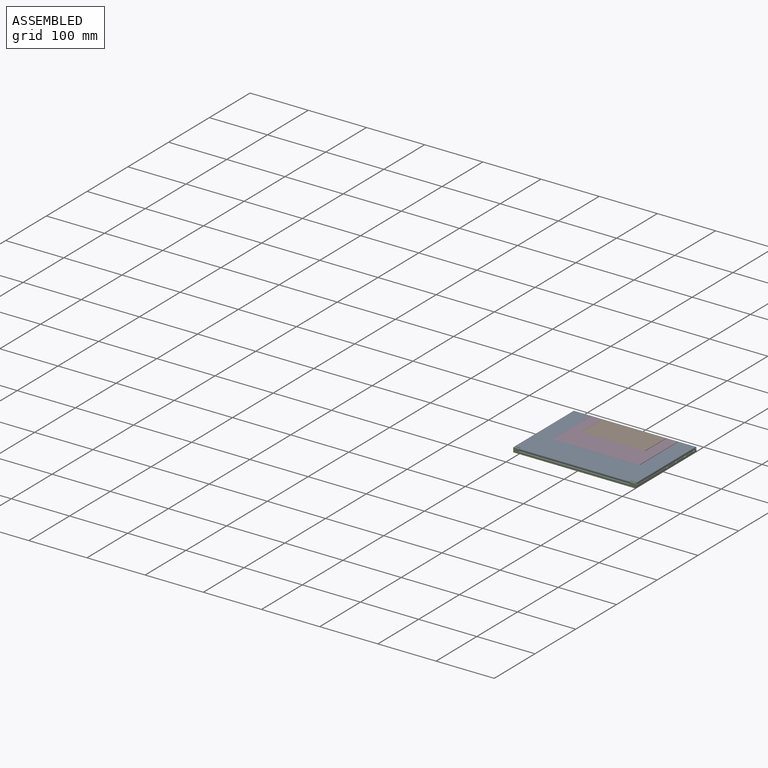
[diagram: assembled view]
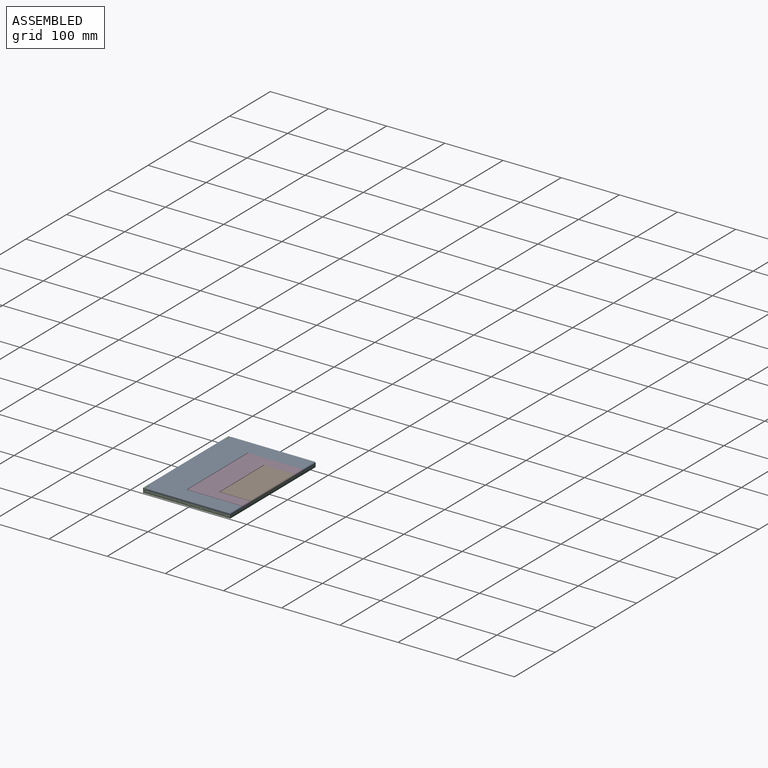
[diagram: assembled view, second angle]
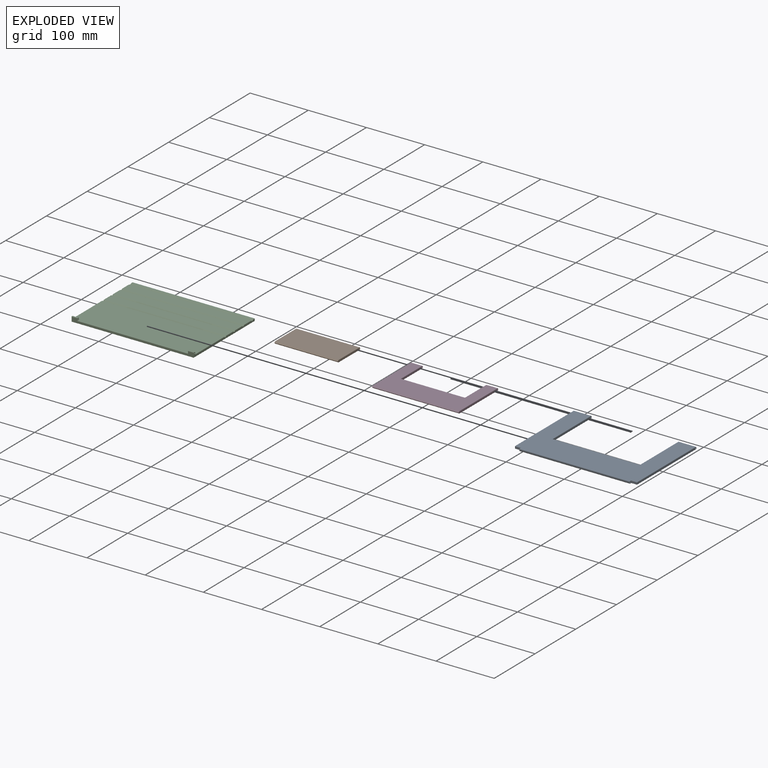
[diagram: exploded view]
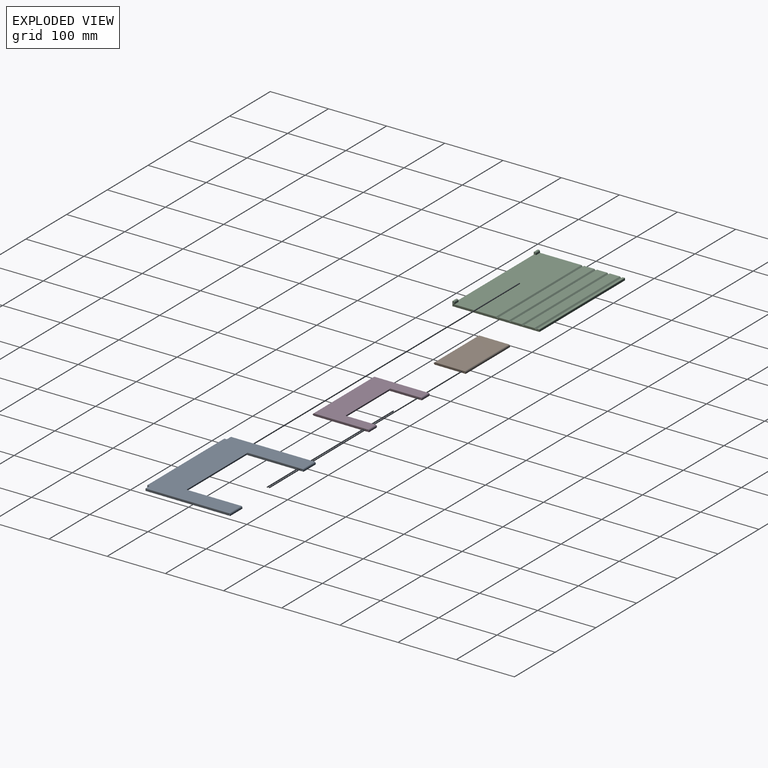
[diagram: exploded view, second angle]
ASSEMBLY  parts=4 mates=3
PART A: 68 faces, bbox 210x150.3x4.3 mm
  f0: plane 29.3x1.55mm, normal (0,1,0), area 45.4mm2, adj f20,f23,f28,f34
  f1: plane 209.3x147.55mm, normal (0,0,-1), area 16123.7mm2, adj f19,f26,f28,f29,f32,f35,f39,f43
  f2: plane 9.9x3.3mm, normal (0,-1,0), area 32.7mm2, adj f10,f49,f57,f58
  f3: plane 29.3x1.55mm, normal (0,1,0), area 45.4mm2, adj f18,f33,f39,f40
  f4: plane 209.3x147.55mm, normal (0,0,1), area 16599.4mm2, adj f18,f20,f22,f24,f27,f41,f50,f51
  f5: plane 9.9x3.3mm, normal (0,-1,0), area 32.7mm2, adj f9,f42,f43,f51
  f6: plane 145.1x3.3mm, normal (1,0,0), area 472.4mm2, adj f34,f35,f37,f41,f42,f66
  f7: plane 145.1x3.3mm, normal (-1,0,0), area 472.4mm2, adj f40,f45,f48,f49,f50,f67
  f8: plane 188.8x1.55mm, normal (0,-1,0), area 292.6mm2, adj f19,f56,f62,f65
  f9: plane 3.85x3.3mm, normal (1,0,0), area 8.9mm2, adj f5,f11,f47,f52,f55,f56
  f10: plane 3.85x3.3mm, normal (-1,0,0), area 8.9mm2, adj f2,f11,f60,f61,f63,f65
  f11: cylinder r=1mm len=189.5mm, axis (1,0,0), area 1190.7mm2, adj f9,f10
  f12: plane 150x1.53mm, normal (0,0.67,-0.74), area 310.2mm2, adj f13,f14,f15,f24
  f13: plane 150x1.65mm, normal (0,1,0), area 247.5mm2, adj f12,f14,f15,f29
  f14: plane 97.25x3.3mm, normal (1,0,0), area 315.6mm2, adj f12,f13,f17,f24,f27,f30,f32,f33
  f15: plane 97.25x3.3mm, normal (-1,0,0), area 315.6mm2, adj f12,f13,f16,f21,f22,f23,f24,f26
  f16: cylinder r=1mm len=29.65mm, axis (1,0,0), area 186.3mm2, adj f15,f66
  f17: cylinder r=1mm len=29.65mm, axis (1,0,0), area 186.3mm2, adj f14,f67
  f18: cylinder r=2.1mm len=29.3mm, axis (-1,0,0), area 96.7mm2, adj f3,f4,f30,f45
  f19: cylinder r=2.1mm len=188.8mm, axis (1,0,0), area 622.8mm2, adj f1,f8,f52,f63
  f20: cylinder r=2.1mm len=29.3mm, axis (-1,0,0), area 96.7mm2, adj f0,f4,f21,f37
  f21: torus R=1.75mm, axis (1,0,0), area 1.7mm2, adj f15,f20,f22,f23
  f22: cylinder r=0.35mm len=94.21mm, axis (0,-1,0), area 51.7mm2, adj f4,f15,f21,f24
  f23: cylinder r=0.35mm len=1.55mm, axis (0,0,-1), area 0.9mm2, adj f0,f15,f21,f25
  f24: cylinder r=0.35mm len=150.7mm, axis (1,0,0), area 126.3mm2, adj f4,f12,f14,f15,f22,f27
  f25: sphere r=0.35mm, area 0.2mm2, adj f23,f26,f28
  f26: cylinder r=0.35mm len=97.6mm, axis (0,-1,0), area 53.5mm2, adj f1,f15,f25,f29
  f27: cylinder r=0.35mm len=94.21mm, axis (0,1,0), area 51.7mm2, adj f4,f14,f24,f30
  f28: cylinder r=0.35mm len=29.3mm, axis (1,0,0), area 16.1mm2, adj f0,f1,f25,f31
  f29: cylinder r=0.35mm len=150.7mm, axis (-1,0,0), area 82.6mm2, adj f1,f13,f26,f32
  f30: torus R=1.75mm, axis (1,0,0), area 1.7mm2, adj f14,f18,f27,f33
  f31: sphere r=0.35mm, area 0.2mm2, adj f28,f34,f35
  f32: cylinder r=0.35mm len=97.6mm, axis (0,1,0), area 53.5mm2, adj f1,f14,f29,f36
  f33: cylinder r=0.35mm len=1.55mm, axis (0,0,1), area 0.9mm2, adj f3,f14,f30,f36
  f34: cylinder r=0.35mm len=1.55mm, axis (0,0,-1), area 0.9mm2, adj f0,f6,f31,f37
  f35: cylinder r=0.35mm len=145.1mm, axis (0,-1,0), area 79.8mm2, adj f1,f6,f31,f38
  f36: sphere r=0.35mm, area 0.2mm2, adj f32,f33,f39
  f37: torus R=1.75mm, axis (1,0,0), area 1.7mm2, adj f6,f20,f34,f41
  f38: sphere r=0.35mm, area 0.2mm2, adj f35,f42,f43
  f39: cylinder r=0.35mm len=29.3mm, axis (1,0,0), area 16.1mm2, adj f1,f3,f36,f44
  f40: cylinder r=0.35mm len=1.55mm, axis (0,0,1), area 0.9mm2, adj f3,f7,f44,f45
  f41: cylinder r=0.35mm len=143.35mm, axis (0,1,0), area 78.8mm2, adj f4,f6,f37,f46
  f42: cylinder r=0.35mm len=3.3mm, axis (0,0,1), area 1.8mm2, adj f5,f6,f38,f46
  f43: cylinder r=0.35mm len=10.25mm, axis (-1,0,0), area 5.5mm2, adj f1,f5,f38,f47
  f44: sphere r=0.35mm, area 0.2mm2, adj f39,f40,f48
  f45: torus R=1.75mm, axis (1,0,0), area 1.7mm2, adj f7,f18,f40,f50
  f46: sphere r=0.35mm, area 0.2mm2, adj f41,f42,f51
  f47: cylinder r=0.35mm len=2.45mm, axis (0,1,0), area 1.2mm2, adj f1,f9,f43,f52
  f48: cylinder r=0.35mm len=145.1mm, axis (0,1,0), area 79.8mm2, adj f1,f7,f44,f53
  f49: cylinder r=0.35mm len=3.3mm, axis (0,0,-1), area 1.8mm2, adj f2,f7,f53,f54
  f50: cylinder r=0.35mm len=143.35mm, axis (0,-1,0), area 78.8mm2, adj f4,f7,f45,f54
  f51: cylinder r=0.35mm len=10.25mm, axis (1,0,0), area 5.5mm2, adj f4,f5,f46,f55
  f52: torus R=1.75mm, axis (1,0,0), area 1.7mm2, adj f9,f19,f47,f56
  f53: sphere r=0.35mm, area 0.2mm2, adj f48,f49,f57
  f54: sphere r=0.35mm, area 0.2mm2, adj f49,f50,f58
  f55: cylinder r=0.35mm len=4.2mm, axis (0,-1,0), area 2.2mm2, adj f4,f9,f51,f59
  f56: cylinder r=0.35mm len=1.55mm, axis (0,0,1), area 0.9mm2, adj f8,f9,f52,f59
  f57: cylinder r=0.35mm len=10.25mm, axis (-1,0,0), area 5.5mm2, adj f1,f2,f53,f60
  f58: cylinder r=0.35mm len=10.25mm, axis (1,0,0), area 5.5mm2, adj f2,f4,f54,f61
  f59: sphere r=0.35mm, area 0.2mm2, adj f55,f56,f62
  f60: cylinder r=0.35mm len=2.45mm, axis (0,-1,0), area 1.2mm2, adj f1,f10,f57,f63
  f61: cylinder r=0.35mm len=4.2mm, axis (0,1,0), area 2.2mm2, adj f4,f10,f58,f64
  f62: cylinder r=0.35mm len=188.8mm, axis (-1,0,0), area 103.8mm2, adj f4,f8,f59,f64
  f63: torus R=1.75mm, axis (1,0,0), area 1.7mm2, adj f10,f19,f60,f65
  f64: sphere r=0.35mm, area 0.2mm2, adj f61,f62,f65
  f65: cylinder r=0.35mm len=1.55mm, axis (0,0,-1), area 0.9mm2, adj f8,f10,f63,f64
  f66: torus R=1.35mm, axis (1,0,0), area 3.9mm2, adj f6,f16
  f67: torus R=1.35mm, axis (1,0,0), area 3.9mm2, adj f7,f17
PART B: 22 faces, bbox 109x55.4x4.2 mm
  f0: plane 108.3x1.55mm, normal (0,1,0), area 167.9mm2, adj f8,f10,f16,f20
  f1: plane 108.3x50.76mm, normal (0,0,1), area 5497.8mm2, adj f8,f14,f17,f19
  f2: plane 109x2.1mm, normal (0,-0.67,0.74), area 309.3mm2, adj f3,f5,f6,f14,f17,f19
  f3: plane 109x2.1mm, normal (0,-0.67,-0.74), area 309.3mm2, adj f2,f5,f6,f9,f12,f15
  f4: plane 108.3x52.51mm, normal (0,0,-1), area 5687.3mm2, adj f9,f12,f15,f16
  f5: plane 54.85x3.3mm, normal (1,0,0), area 174.2mm2, adj f2,f3,f7,f9,f10,f11,f14
  f6: plane 54.85x3.3mm, normal (-1,0,0), area 174.2mm2, adj f2,f3,f7,f15,f19,f20,f21
  f7: cylinder r=1mm len=109mm, axis (1,0,0), area 684.9mm2, adj f5,f6
  f8: cylinder r=2.1mm len=108.3mm, axis (-1,0,0), area 357.2mm2, adj f0,f1,f11,f21
  f9: cylinder r=0.35mm len=53.04mm, axis (0,-1,0), area 29mm2, adj f3,f4,f5,f12,f13
  f10: cylinder r=0.35mm len=1.55mm, axis (0,0,-1), area 0.9mm2, adj f0,f5,f11,f13
  f11: torus R=1.75mm, axis (1,0,0), area 1.7mm2, adj f5,f8,f10,f14
  f12: cylinder r=0.35mm len=108.77mm, axis (-1,0,0), area 28mm2, adj f3,f4,f9,f15
  f13: sphere r=0.35mm, area 0.2mm2, adj f9,f10,f16
  f14: cylinder r=0.35mm len=51.29mm, axis (0,1,0), area 28mm2, adj f1,f2,f5,f11,f17
  f15: cylinder r=0.35mm len=53.04mm, axis (0,1,0), area 29mm2, adj f3,f4,f6,f12,f18
  f16: cylinder r=0.35mm len=108.3mm, axis (-1,0,0), area 59.5mm2, adj f0,f4,f13,f18
  f17: cylinder r=0.35mm len=108.77mm, axis (-1,0,0), area 28mm2, adj f1,f2,f14,f19
  f18: sphere r=0.35mm, area 0.2mm2, adj f15,f16,f20
  f19: cylinder r=0.35mm len=51.29mm, axis (0,-1,0), area 28mm2, adj f1,f2,f6,f17,f21
  f20: cylinder r=0.35mm len=1.55mm, axis (0,0,1), area 0.9mm2, adj f0,f6,f18,f21
  f21: torus R=1.75mm, axis (1,0,0), area 1.7mm2, adj f6,f8,f19,f20
PART C: 123 faces, bbox 210x150x8.4 mm
  f0: plane 209.3x7.5mm, normal (0,-1,0), area 769mm2, adj f78,f79,f86,f91,f92,f101,f107,f108
  f1: plane 149.3x7.5mm, normal (-1,0,0), area 482.3mm2, adj f31,f36,f41,f46,f51,f54,f55,f62
  f2: plane 209.3x17.25mm, normal (0,0,1), area 3611.4mm2, adj f35,f39,f45,f46
  f3: plane 209.3x3.78mm, normal (0,0,1), area 790.6mm2, adj f61,f71,f81,f82
  f4: plane 209.3x17.25mm, normal (0,0,1), area 3611.4mm2, adj f56,f59,f73,f74
  f5: plane 209.3x74.78mm, normal (0,0,1), area 15571.1mm2, adj f67,f68,f77,f85,f91,f97,f98,f105
  f6: plane 209.3x17.25mm, normal (0,0,1), area 3611.4mm2, adj f32,f33,f41,f42
  f7: plane 149.65x7.5mm, normal (1,0,0), area 483.4mm2, adj f11,f28,f30,f33,f39,f43,f48,f49
  f8: plane 9.3x1.75mm, normal (0,1,0), area 16.3mm2, adj f26,f99,f111,f117
  f9: plane 9.3x1.55mm, normal (0,0,1), area 14.4mm2, adj f26,f106,f115,f120
  f10: cylinder r=1mm len=9.65mm, axis (-1,0,0), area 60.6mm2, adj f17,f121
  f11: plane 209.65x3.3mm, normal (0,1,0), area 691.8mm2, adj f7,f81,f94,f95
  f12: plane 9.3x1.75mm, normal (0,1,0), area 16.3mm2, adj f27,f58,f66,f67
  f13: plane 9.3x1.55mm, normal (0,0,1), area 14.4mm2, adj f27,f65,f79,f80
  f14: plane 209.3x149.3mm, normal (0,0,-1), area 31248.5mm2, adj f93,f94,f108,f109
  f15: cylinder r=1mm len=9.65mm, axis (-1,0,0), area 60.6mm2, adj f16,f122
  f16: plane 3.5x3.3mm, normal (-1,0,0), area 7.8mm2, adj f15,f57,f58,f65,f77,f78
  f17: plane 3.5x3.3mm, normal (1,0,0), area 7.8mm2, adj f10,f98,f99,f100,f106,f107
  f18: plane 209.3x2.15mm, normal (0,0.62,0.78), area 577.4mm2, adj f19,f84,f96,f97
  f19: plane 209.3x2.15mm, normal (0,-0.62,0.78), area 577.4mm2, adj f18,f74,f75,f89
  f20: plane 209.3x2.15mm, normal (0,0.62,0.78), area 577.4mm2, adj f21,f48,f55,f56
  f21: plane 209.3x2.15mm, normal (0,-0.62,0.78), area 577.4mm2, adj f20,f42,f43,f51
  f22: plane 209.3x2.15mm, normal (0,0.62,0.78), area 577.4mm2, adj f23,f28,f31,f32
  f23: plane 209.3x2.15mm, normal (0,-0.62,0.78), area 577.4mm2, adj f22,f30,f35,f36
  f24: plane 209.3x2.15mm, normal (0,0.62,0.78), area 577.4mm2, adj f25,f45,f49,f54
  f25: plane 209.3x2.15mm, normal (0,-0.62,0.78), area 577.4mm2, adj f24,f53,f61,f62
  f26: cylinder r=2.1mm len=9.3mm, axis (-1,0,0), area 30.7mm2, adj f8,f9,f100,f119
  f27: cylinder r=2.1mm len=9.3mm, axis (-1,0,0), area 30.7mm2, adj f12,f13,f57,f70
  f28: cylinder r=0.35mm len=2.59mm, axis (0,-0.78,0.62), area 1.6mm2, adj f7,f22,f29,f30
  f29: sphere r=0.35mm, area 0.1mm2, adj f28,f32,f33
  f30: cylinder r=0.35mm len=2.59mm, axis (0,-0.78,-0.62), area 1.6mm2, adj f7,f23,f28,f34
  f31: cylinder r=0.35mm len=2.59mm, axis (0,0.78,-0.62), area 1.6mm2, adj f1,f22,f36,f37
  f32: cylinder r=0.35mm len=209.3mm, axis (-1,0,0), area 49.4mm2, adj f6,f22,f29,f37
  f33: cylinder r=0.35mm len=17.25mm, axis (0,1,0), area 9.5mm2, adj f6,f7,f29,f38
  f34: sphere r=0.35mm, area 0.1mm2, adj f30,f35,f39
  f35: cylinder r=0.35mm len=209.3mm, axis (1,0,0), area 49.4mm2, adj f2,f23,f34,f40
  f36: cylinder r=0.35mm len=2.59mm, axis (0,0.78,0.62), area 1.6mm2, adj f1,f23,f31,f40
  f37: sphere r=0.35mm, area 0.1mm2, adj f31,f32,f41
  f38: sphere r=0.35mm, area 0.1mm2, adj f33,f42,f43
  f39: cylinder r=0.35mm len=17.25mm, axis (0,1,0), area 9.5mm2, adj f2,f7,f34,f44
  f40: sphere r=0.35mm, area 0.1mm2, adj f35,f36,f46
  f41: cylinder r=0.35mm len=17.25mm, axis (0,-1,0), area 9.5mm2, adj f1,f6,f37,f47
  f42: cylinder r=0.35mm len=209.3mm, axis (1,0,0), area 49.4mm2, adj f6,f21,f38,f47
  f43: cylinder r=0.35mm len=2.59mm, axis (0,-0.78,-0.62), area 1.6mm2, adj f7,f21,f38,f48
  f44: sphere r=0.35mm, area 0.1mm2, adj f39,f45,f49
  f45: cylinder r=0.35mm len=209.3mm, axis (-1,0,0), area 49.4mm2, adj f2,f24,f44,f50
  f46: cylinder r=0.35mm len=17.25mm, axis (0,-1,0), area 9.5mm2, adj f1,f2,f40,f50
  f47: sphere r=0.35mm, area 0.1mm2, adj f41,f42,f51
  f48: cylinder r=0.35mm len=2.59mm, axis (0,-0.78,0.62), area 1.6mm2, adj f7,f20,f43,f52
  f49: cylinder r=0.35mm len=2.59mm, axis (0,-0.78,0.62), area 1.6mm2, adj f7,f24,f44,f53
  f50: sphere r=0.35mm, area 0.1mm2, adj f45,f46,f54
  f51: cylinder r=0.35mm len=2.59mm, axis (0,0.78,0.62), area 1.6mm2, adj f1,f21,f47,f55
  f52: sphere r=0.35mm, area 0.1mm2, adj f48,f56,f59
  f53: cylinder r=0.35mm len=2.59mm, axis (0,-0.78,-0.62), area 1.6mm2, adj f7,f25,f49,f60
  f54: cylinder r=0.35mm len=2.59mm, axis (0,0.78,-0.62), area 1.6mm2, adj f1,f24,f50,f62
  f55: cylinder r=0.35mm len=2.59mm, axis (0,0.78,-0.62), area 1.6mm2, adj f1,f20,f51,f63
  f56: cylinder r=0.35mm len=209.3mm, axis (-1,0,0), area 49.4mm2, adj f4,f20,f52,f63
  f57: torus R=1.75mm, axis (1,0,0), area 1.7mm2, adj f16,f27,f58,f65
  f58: cylinder r=0.35mm len=1.75mm, axis (0,0,1), area 1mm2, adj f12,f16,f57,f68
  f59: cylinder r=0.35mm len=17.25mm, axis (0,1,0), area 9.5mm2, adj f4,f7,f52,f64
  f60: sphere r=0.35mm, area 0.1mm2, adj f53,f61,f71
  f61: cylinder r=0.35mm len=209.3mm, axis (1,0,0), area 49.4mm2, adj f3,f25,f60,f72
  f62: cylinder r=0.35mm len=2.59mm, axis (0,0.78,0.62), area 1.6mm2, adj f1,f25,f54,f72
  f63: sphere r=0.35mm, area 0.1mm2, adj f55,f56,f73
  f64: sphere r=0.35mm, area 0.1mm2, adj f59,f74,f75
  f65: cylinder r=0.35mm len=1.55mm, axis (0,-1,0), area 0.9mm2, adj f13,f16,f57,f69
  f66: cylinder r=0.35mm len=1.75mm, axis (0,0,-1), area 1mm2, adj f7,f12,f70,f76
  f67: cylinder r=0.35mm len=9.3mm, axis (1,0,0), area 5.1mm2, adj f5,f12,f68,f76
  f68: torus R=0.7mm, axis (0,0,1), area 0.4mm2, adj f5,f58,f67,f77
  f69: sphere r=0.35mm, area 0.2mm2, adj f65,f78,f79
  f70: torus R=1.75mm, axis (1,0,0), area 1.7mm2, adj f7,f27,f66,f80
  f71: cylinder r=0.35mm len=4.13mm, axis (0,1,0), area 2.2mm2, adj f3,f7,f60,f81
  f72: sphere r=0.35mm, area 0.1mm2, adj f61,f62,f82
  f73: cylinder r=0.35mm len=17.25mm, axis (0,-1,0), area 9.5mm2, adj f1,f4,f63,f83
  f74: cylinder r=0.35mm len=209.3mm, axis (1,0,0), area 49.4mm2, adj f4,f19,f64,f83
  f75: cylinder r=0.35mm len=2.59mm, axis (0,-0.78,-0.62), area 1.6mm2, adj f7,f19,f64,f84
  f76: torus R=0.7mm, axis (1,0,0), area 0.4mm2, adj f7,f66,f67,f85
  f77: cylinder r=0.35mm len=3.3mm, axis (0,1,0), area 1.8mm2, adj f5,f16,f68,f86
  f78: cylinder r=0.35mm len=3.5mm, axis (0,0,1), area 1.9mm2, adj f0,f16,f69,f86
  f79: cylinder r=0.35mm len=9.3mm, axis (-1,0,0), area 5.1mm2, adj f0,f13,f69,f87
  f80: cylinder r=0.35mm len=1.55mm, axis (0,1,0), area 0.9mm2, adj f7,f13,f70,f87
  f81: cylinder r=0.35mm len=209.65mm, axis (-1,0,0), area 115.2mm2, adj f3,f11,f71,f88
  f82: cylinder r=0.35mm len=3.78mm, axis (0,-1,0), area 2.1mm2, adj f1,f3,f72,f88
  f83: sphere r=0.35mm, area 0.1mm2, adj f73,f74,f89
  f84: cylinder r=0.35mm len=2.59mm, axis (0,-0.78,0.62), area 1.6mm2, adj f7,f18,f75,f90
  f85: cylinder r=0.35mm len=70.78mm, axis (0,1,0), area 38.9mm2, adj f5,f7,f76,f90
  f86: torus R=0.7mm, axis (0,-1,0), area 0.4mm2, adj f0,f77,f78,f91
  f87: sphere r=0.35mm, area 0.2mm2, adj f79,f80,f92
  f88: sphere r=0.35mm, area 0.2mm2, adj f81,f82,f95
  f89: cylinder r=0.35mm len=2.59mm, axis (0,0.78,0.62), area 1.6mm2, adj f1,f19,f83,f96
  f90: sphere r=0.35mm, area 0.1mm2, adj f84,f85,f97
  f91: cylinder r=0.35mm len=189.3mm, axis (-1,0,0), area 104.1mm2, adj f0,f5,f86,f101
  f92: cylinder r=0.35mm len=7.5mm, axis (0,0,1), area 4.1mm2, adj f0,f7,f87,f102
  f93: cylinder r=0.35mm len=149.65mm, axis (0,-1,0), area 82.2mm2, adj f7,f14,f94,f102
  f94: cylinder r=0.35mm len=209.65mm, axis (-1,0,0), area 115.2mm2, adj f11,f14,f93,f103
  f95: cylinder r=0.35mm len=3.3mm, axis (0,0,1), area 1.8mm2, adj f1,f11,f88,f103
  f96: cylinder r=0.35mm len=2.59mm, axis (0,0.78,-0.62), area 1.6mm2, adj f1,f18,f89,f104
  f97: cylinder r=0.35mm len=209.3mm, axis (-1,0,0), area 49.4mm2, adj f5,f18,f90,f104
  f98: cylinder r=0.35mm len=3.3mm, axis (0,-1,0), area 1.8mm2, adj f5,f17,f101,f105
  f99: cylinder r=0.35mm len=1.75mm, axis (0,0,-1), area 1mm2, adj f8,f17,f100,f105
  f100: torus R=1.75mm, axis (1,0,0), area 1.7mm2, adj f17,f26,f99,f106
  f101: torus R=0.7mm, axis (0,-1,0), area 0.4mm2, adj f0,f91,f98,f107
  f102: sphere r=0.35mm, area 0.2mm2, adj f92,f93,f108
  f103: sphere r=0.35mm, area 0.2mm2, adj f94,f95,f109
  f104: sphere r=0.35mm, area 0.1mm2, adj f96,f97,f110
  f105: torus R=0.7mm, axis (0,0,1), area 0.4mm2, adj f5,f98,f99,f111
  f106: cylinder r=0.35mm len=1.55mm, axis (0,1,0), area 0.9mm2, adj f9,f17,f100,f112
  f107: cylinder r=0.35mm len=3.5mm, axis (0,0,-1), area 1.9mm2, adj f0,f17,f101,f112
  f108: cylinder r=0.35mm len=209.3mm, axis (-1,0,0), area 115.1mm2, adj f0,f14,f102,f113
  f109: cylinder r=0.35mm len=149.3mm, axis (0,1,0), area 82.1mm2, adj f1,f14,f103,f113
  f110: cylinder r=0.35mm len=70.78mm, axis (0,-1,0), area 38.9mm2, adj f1,f5,f104,f114
  f111: cylinder r=0.35mm len=9.3mm, axis (1,0,0), area 5.1mm2, adj f5,f8,f105,f114
  f112: sphere r=0.35mm, area 0.2mm2, adj f106,f107,f115
  f113: sphere r=0.35mm, area 0.2mm2, adj f108,f109,f116
  f114: torus R=0.7mm, axis (1,0,0), area 0.4mm2, adj f1,f110,f111,f117
  f115: cylinder r=0.35mm len=9.3mm, axis (-1,0,0), area 5.1mm2, adj f0,f9,f112,f118
  f116: cylinder r=0.35mm len=7.5mm, axis (0,0,-1), area 4.1mm2, adj f0,f1,f113,f118
  f117: cylinder r=0.35mm len=1.75mm, axis (0,0,1), area 1mm2, adj f1,f8,f114,f119
  f118: sphere r=0.35mm, area 0.2mm2, adj f115,f116,f120
  f119: torus R=1.75mm, axis (1,0,0), area 1.7mm2, adj f1,f26,f117,f120
  f120: cylinder r=0.35mm len=1.55mm, axis (0,-1,0), area 0.9mm2, adj f1,f9,f118,f119
  f121: torus R=1.35mm, axis (1,0,0), area 3.9mm2, adj f1,f10
  f122: torus R=1.35mm, axis (1,0,0), area 3.9mm2, adj f7,f15
PART D: 42 faces, bbox 149x97.4x4.2 mm
  f0: plane 18.8x1.55mm, normal (0,1,0), area 29.1mm2, adj f14,f17,f21,f27
  f1: plane 148.3x92.76mm, normal (0,0,1), area 7977.9mm2, adj f14,f15,f18,f20,f23,f34,f37,f39
  f2: plane 148.3x94.51mm, normal (0,0,-1), area 7861.6mm2, adj f21,f22,f25,f28,f29,f32,f35,f36
  f3: plane 18.8x1.55mm, normal (0,1,0), area 29.1mm2, adj f15,f30,f36,f40
  f4: plane 149x2.1mm, normal (0,-0.67,0.74), area 422.8mm2, adj f5,f6,f7,f18,f20,f23
  f5: plane 149x2.1mm, normal (0,-0.67,-0.74), area 422.8mm2, adj f4,f6,f7,f22,f25,f29
  f6: plane 96.85x3.3mm, normal (1,0,0), area 312.8mm2, adj f4,f5,f12,f23,f26,f29,f30
  f7: plane 96.85x3.3mm, normal (-1,0,0), area 312.8mm2, adj f4,f5,f13,f16,f17,f18,f22
  f8: plane 110x1.53mm, normal (0,0.67,-0.74), area 227.5mm2, adj f9,f10,f11,f37
  f9: plane 110x1.65mm, normal (0,1,0), area 181.5mm2, adj f8,f10,f11,f32
  f10: plane 55.25x3.3mm, normal (1,0,0), area 177mm2, adj f8,f9,f13,f27,f28,f31,f34,f37
  f11: plane 55.25x3.3mm, normal (-1,0,0), area 177mm2, adj f8,f9,f12,f35,f37,f39,f40,f41
  f12: cylinder r=1mm len=19.5mm, axis (1,0,0), area 122.5mm2, adj f6,f11
  f13: cylinder r=1mm len=19.5mm, axis (1,0,0), area 122.5mm2, adj f7,f10
  f14: cylinder r=2.1mm len=18.8mm, axis (-1,0,0), area 62mm2, adj f0,f1,f16,f31
  f15: cylinder r=2.1mm len=18.8mm, axis (-1,0,0), area 62mm2, adj f1,f3,f26,f41
  f16: torus R=1.75mm, axis (1,0,0), area 1.7mm2, adj f7,f14,f17,f18
  f17: cylinder r=0.35mm len=1.55mm, axis (0,0,1), area 0.9mm2, adj f0,f7,f16,f19
  f18: cylinder r=0.35mm len=93.29mm, axis (0,-1,0), area 51.1mm2, adj f1,f4,f7,f16,f20
  f19: sphere r=0.35mm, area 0.2mm2, adj f17,f21,f22
  f20: cylinder r=0.35mm len=148.77mm, axis (-1,0,0), area 38.4mm2, adj f1,f4,f18,f23
  f21: cylinder r=0.35mm len=18.8mm, axis (-1,0,0), area 10.3mm2, adj f0,f2,f19,f24
  f22: cylinder r=0.35mm len=95.04mm, axis (0,1,0), area 52.1mm2, adj f2,f5,f7,f19,f25
  f23: cylinder r=0.35mm len=93.29mm, axis (0,1,0), area 51.1mm2, adj f1,f4,f6,f20,f26
  f24: sphere r=0.35mm, area 0.2mm2, adj f21,f27,f28
  f25: cylinder r=0.35mm len=148.77mm, axis (-1,0,0), area 38.4mm2, adj f2,f5,f22,f29
  f26: torus R=1.75mm, axis (1,0,0), area 1.7mm2, adj f6,f15,f23,f30
  f27: cylinder r=0.35mm len=1.55mm, axis (0,0,-1), area 0.9mm2, adj f0,f10,f24,f31
  f28: cylinder r=0.35mm len=55.6mm, axis (0,1,0), area 30.4mm2, adj f2,f10,f24,f32
  f29: cylinder r=0.35mm len=95.04mm, axis (0,-1,0), area 52.1mm2, adj f2,f5,f6,f25,f33
  f30: cylinder r=0.35mm len=1.55mm, axis (0,0,-1), area 0.9mm2, adj f3,f6,f26,f33
  f31: torus R=1.75mm, axis (1,0,0), area 1.7mm2, adj f10,f14,f27,f34
  f32: cylinder r=0.35mm len=110.7mm, axis (-1,0,0), area 60.6mm2, adj f2,f9,f28,f35
  f33: sphere r=0.35mm, area 0.2mm2, adj f29,f30,f36
  f34: cylinder r=0.35mm len=52.21mm, axis (0,-1,0), area 28.6mm2, adj f1,f10,f31,f37
  f35: cylinder r=0.35mm len=55.6mm, axis (0,-1,0), area 30.4mm2, adj f2,f11,f32,f38
  f36: cylinder r=0.35mm len=18.8mm, axis (-1,0,0), area 10.3mm2, adj f2,f3,f33,f38
  f37: cylinder r=0.35mm len=110.7mm, axis (-1,0,0), area 92.7mm2, adj f1,f8,f10,f11,f34,f39
  f38: sphere r=0.35mm, area 0.2mm2, adj f35,f36,f40
  f39: cylinder r=0.35mm len=52.21mm, axis (0,1,0), area 28.6mm2, adj f1,f11,f37,f41
  f40: cylinder r=0.35mm len=1.55mm, axis (0,0,1), area 0.9mm2, adj f3,f11,f38,f41
  f41: torus R=1.75mm, axis (1,0,0), area 1.7mm2, adj f11,f15,f39,f40
PLACE A rot(axis=(-1,0,0),0.1deg) t=(-0.05,0,-0.06)mm
PLACE B rot(axis=(-1,0,0),0.3deg) t=(-0.65,-0.01,0.19)mm
PLACE C at identity fixed
PLACE D rot(axis=(-1,0,0),0.1deg) t=(-0.35,0,0.05)mm
MATE revolute A.f11 <-> C.f10  axis (-1,0,0) through (-94.8,-73,2)mm
MATE revolute B.f7 <-> D.f12  axis (-1,0,0) through (-55.15,73,1.87)mm
MATE revolute A.f16 <-> D.f12  axis (1,0,0) through (-75.05,73,1.87)mm
